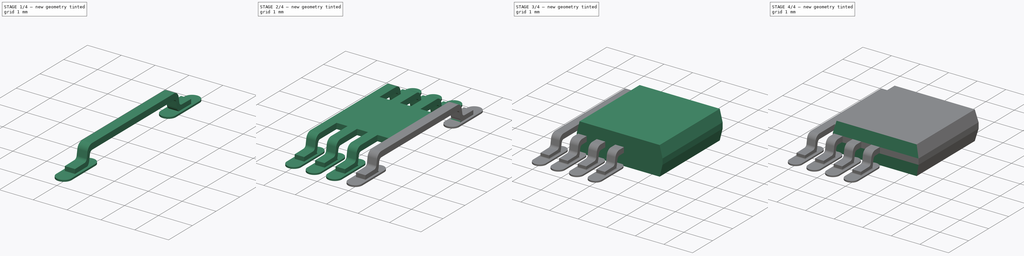
[diagram: build sequence overview — one tinted view per stage of 4, left to right]
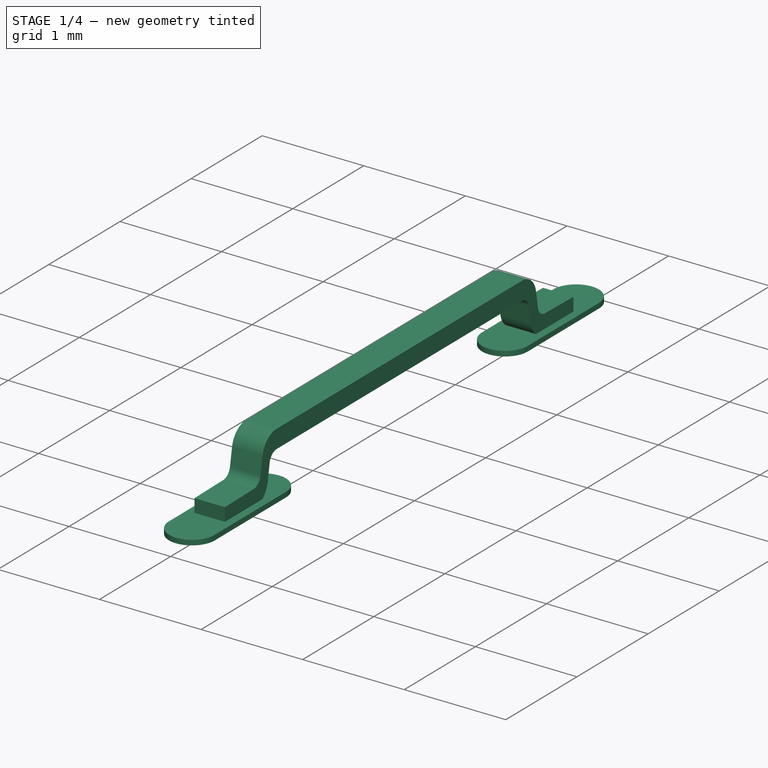
[diagram: stage 1 of 4 — iso view after this stage's code; geometry added in this stage tinted green]
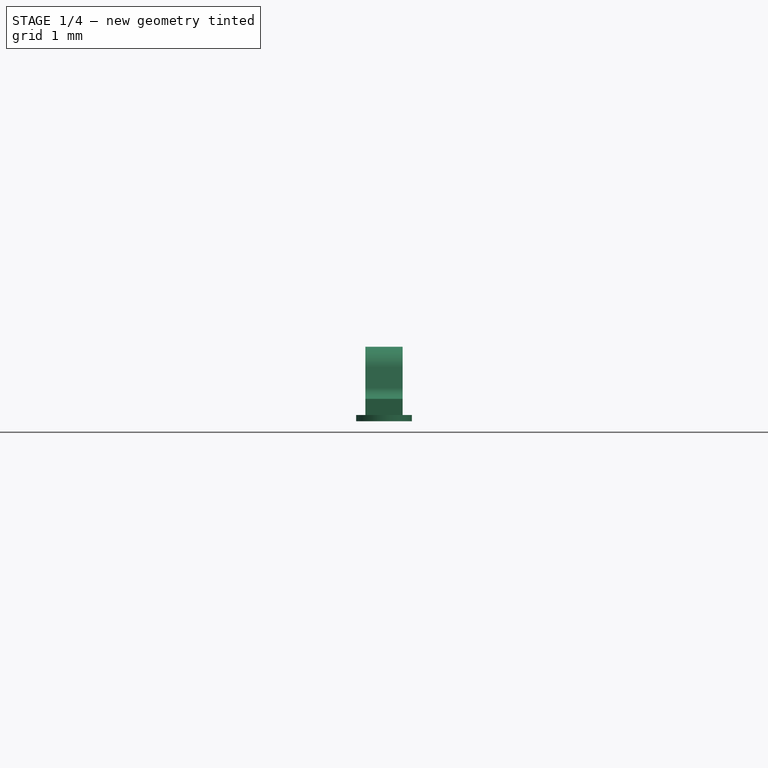
[diagram: stage 1 of 4 — front view after this stage's code; geometry added in this stage tinted green]
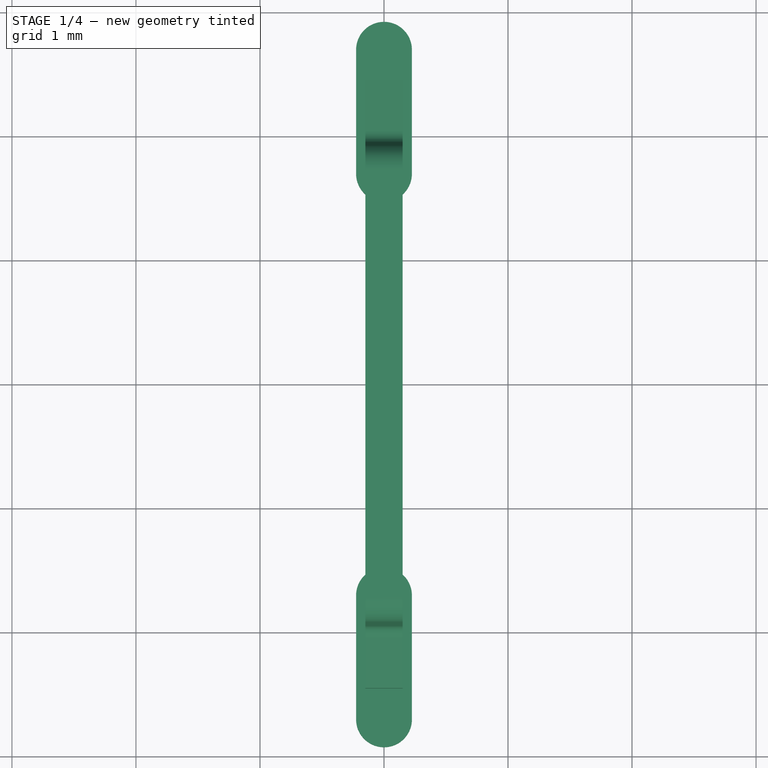
[diagram: stage 1 of 4 — top view after this stage's code; geometry added in this stage tinted green]
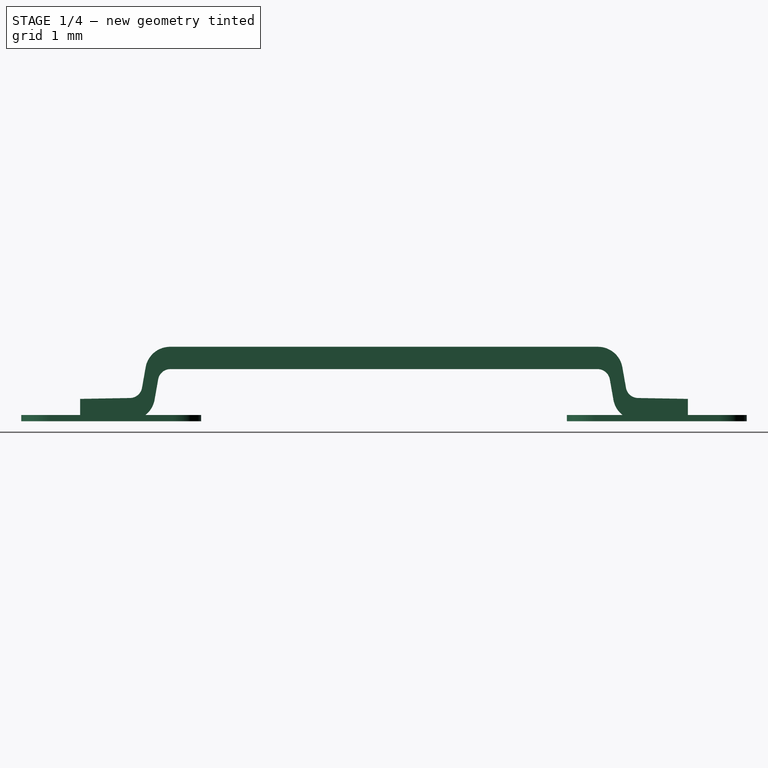
[diagram: stage 1 of 4 — right view after this stage's code; geometry added in this stage tinted green]
FCSTD DOCUMENT  (FreeCAD 0.18.4R)
Label: LMV358IDGKR
License: Other
LicenseURL: https://designlibre.org/license-en/
objects: Sketcher::SketchObject×5, PartDesign::Pad×4, PartDesign::Fillet×3, PartDesign::Body×2, PartDesign::Pocket×1, PartDesign::Mirrored×1, PartDesign::LinearPattern×1, App::Part×1
note: 22 computed .brp shape members not serialized (recipe doc carries the construction recipe); baked Part::Feature solids carry a one-line shape summary decoded from their .brp

FEATURE [PartDesign::Body] Body  label="chip"
  Group = -> [Sketch,Pad,Sketch001,Pocket,Mirrored]
  Origin = -> Origin001
  Tip = -> Mirrored
FEATURE [PartDesign::Pad] Pad001
  Length = 0.3
  Length2 = 100
  Midplane = true
  Placement = pos=(0,0,0) rot=(0.57735,0.57735,0.57735;2.0944rad)
  Profile = -> Sketch002
  Refine = true
  Type = 0
FEATURE [Sketcher::SketchObject] Sketch003
  MapMode = 5
  Support = -> [XY_Plane002]
  sketch-geometry (8):
    g0: ArcOfCircle CenterX=0 CenterY=2.7 CenterZ=0 NormalX=0 NormalY=0 NormalZ=1 AngleXU=0 Radius=0.225 StartAngle=9.8108e-12 EndAngle=3.14159
    g1: ArcOfCircle CenterX=1.5357e-12 CenterY=1.7 CenterZ=0 NormalX=0 NormalY=0 NormalZ=1 AngleXU=0 Radius=0.225 StartAngle=3.14159 EndAngle=6.28319
    g2: LineSegment StartX=-0.225 StartY=2.7 StartZ=0 EndX=-0.225 EndY=1.7 EndZ=0
    g3: LineSegment StartX=0.225 StartY=2.7 StartZ=0 EndX=0.225 EndY=1.7 EndZ=0
    g4: ArcOfCircle CenterX=8.418e-13 CenterY=-2.7 CenterZ=0 NormalX=0 NormalY=0 NormalZ=1 AngleXU=0 Radius=0.225 StartAngle=3.14159 EndAngle=6.28319
    g5: ArcOfCircle CenterX=-1.5357e-12 CenterY=-1.7 CenterZ=0 NormalX=0 NormalY=0 NormalZ=1 AngleXU=0 Radius=0.225 StartAngle=0 EndAngle=3.14159
    g6: LineSegment StartX=0.225 StartY=-2.7 StartZ=0 EndX=0.225 EndY=-1.7 EndZ=0
    g7: LineSegment StartX=-0.225 StartY=-2.7 StartZ=0 EndX=-0.225 EndY=-1.7 EndZ=0
  constraints (19):
    c: Tangent(g0,g3) = 1.5708
    c: Tangent(g0,g2) = -1.5708
    c: Tangent(g2,g1) = -1.5708
    c: Tangent(g3,g1) = 1.5708
    c: Vertical(g2)
    c: Equal(g0,g1)
    c: PointOnObject(g0,g-2)
    c: Tangent(g4,g7) = 1.5708
    c: Tangent(g4,g6) = -1.5708
    c: Tangent(g6,g5) = -1.5708
    c: Tangent(g7,g5) = 1.5708
    c: Vertical(g6)
    c: Equal(g4,g5)
    c: DistanceY(g1,g0) = 1
    c: Equal(g6,g3)
    c: Equal(g5,g0)
    c: Radius(g4) = 0.225
    c: DistanceY(g-1,g1) = 1.7
    c: Symmetric(g5,g1,g-1)
FEATURE [PartDesign::Pad] Pad002
  BaseFeature = -> Pad001
  Length = 0.05
  Length2 = 100
  Placement = pos=(0,0,0) rot=(0.57735,0.57735,0.57735;2.0944rad)
  Profile = -> Sketch003
  Refine = true
  Type = 0
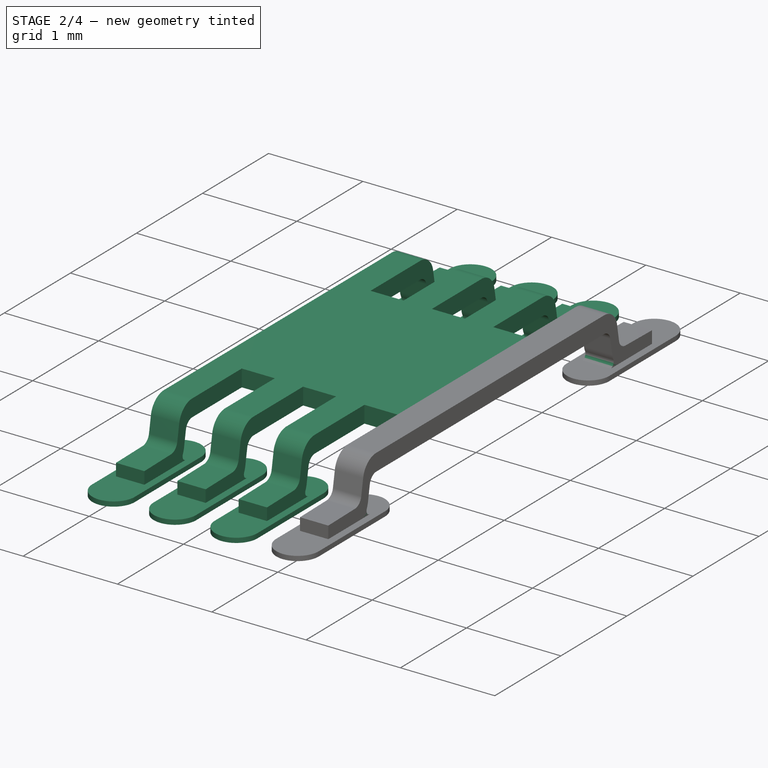
[diagram: stage 2 of 4 — iso view after this stage's code; geometry added in this stage tinted green]
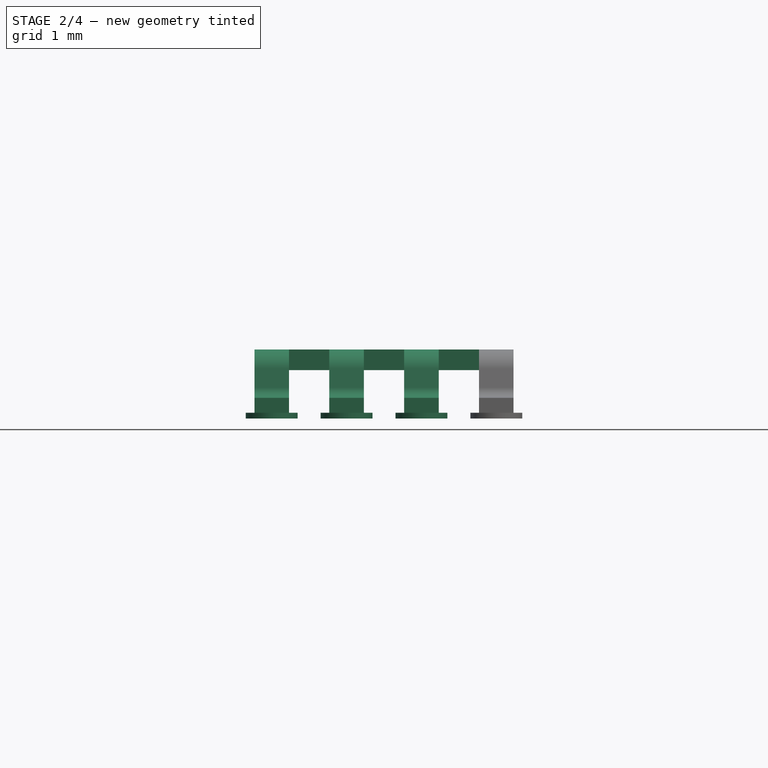
[diagram: stage 2 of 4 — front view after this stage's code; geometry added in this stage tinted green]
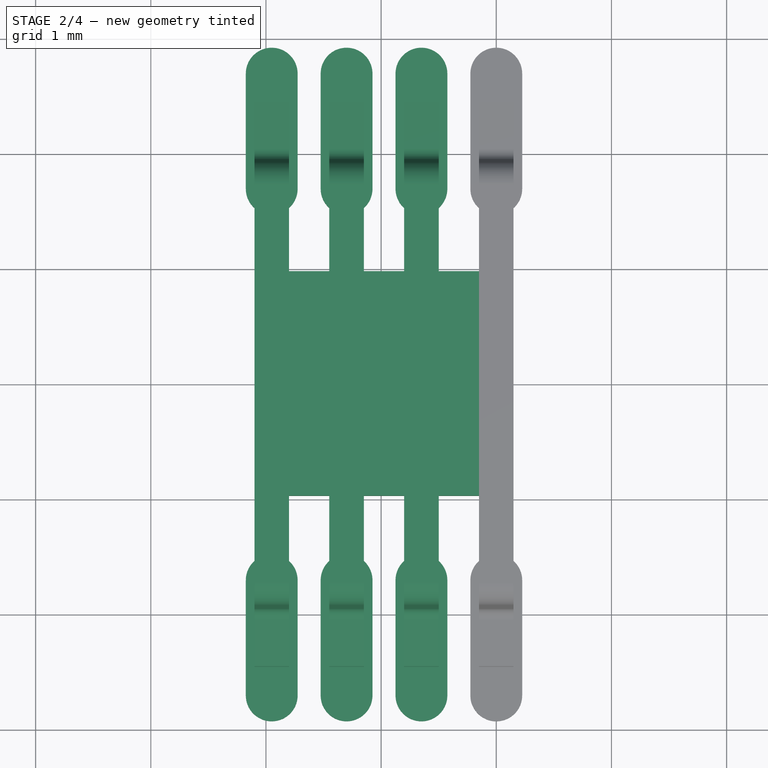
[diagram: stage 2 of 4 — top view after this stage's code; geometry added in this stage tinted green]
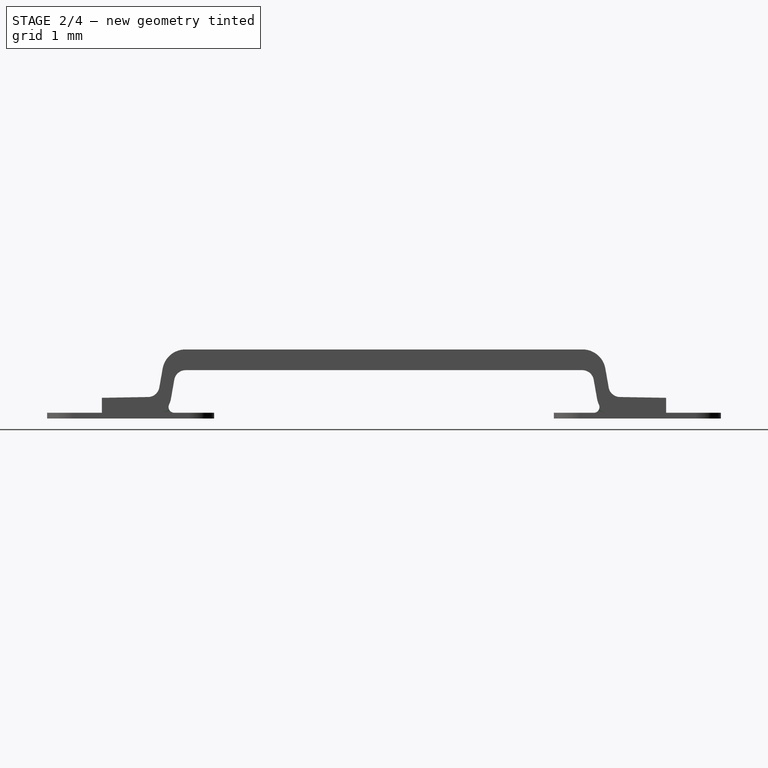
[diagram: stage 2 of 4 — right view after this stage's code; geometry added in this stage tinted green]
FEATURE [Sketcher::SketchObject] Sketch004
  ExternalGeometry = -> [Pad002]
  MapMode = 5
  Placement = pos=(-2e-16,2e-16,0.6) rot=(0,0,-1;1.5708rad)
  Support = -> [Pad002]
  sketch-geometry (4):
    g0: LineSegment StartX=-0.975 StartY=0.15 StartZ=0 EndX=0.975 EndY=0.15 EndZ=0
    g1: LineSegment StartX=0.975 StartY=0.15 StartZ=0 EndX=0.975 EndY=-1.8 EndZ=0
    g2: LineSegment StartX=0.975 StartY=-1.8 StartZ=0 EndX=-0.975 EndY=-1.8 EndZ=0
    g3: LineSegment StartX=-0.975 StartY=-1.8 StartZ=0 EndX=-0.975 EndY=0.15 EndZ=0
  constraints (11):
    c: Coincident(g0,g1)
    c: Coincident(g1,g2)
    c: Coincident(g2,g3)
    c: Coincident(g3,g0)
    c: Horizontal(g2)
    c: Vertical(g1)
    c: Vertical(g3)
    c: Symmetric(g0,g0,g-2)
    c: Equal(g1,g0)
    c: DistanceY(g1,g1) = 1.95
    c: PointOnObject(g0,g-3)
FEATURE [PartDesign::Pad] Pad003
  BaseFeature = -> Pad002
  Length = 0.18
  Length2 = 100
  Placement = pos=(0,0,0) rot=(0.57735,0.57735,0.57735;2.0944rad)
  Profile = -> Sketch004
  Refine = true
  Reversed = true
  Type = 0
FEATURE [PartDesign::LinearPattern] LinearPattern
  BaseFeature = -> Pad003
  Direction = -> X_Axis002
  Length = 1.95
  Occurrences = 4
  Originals = -> [Pad001,Pad002]
  Placement = pos=(0,0,0) rot=(0.57735,0.57735,0.57735;2.0944rad)
  Refine = true
  Reversed = true
FEATURE [PartDesign::Fillet] Fillet
  Base = -> LinearPattern [Edge346,Edge234,Edge125,Edge40,Edge359,Edge255,Edge168,Edge59]
  BaseFeature = -> LinearPattern
  Placement = pos=(0,0,0) rot=(0.57735,0.57735,0.57735;2.0944rad)
  Radius = 0.05
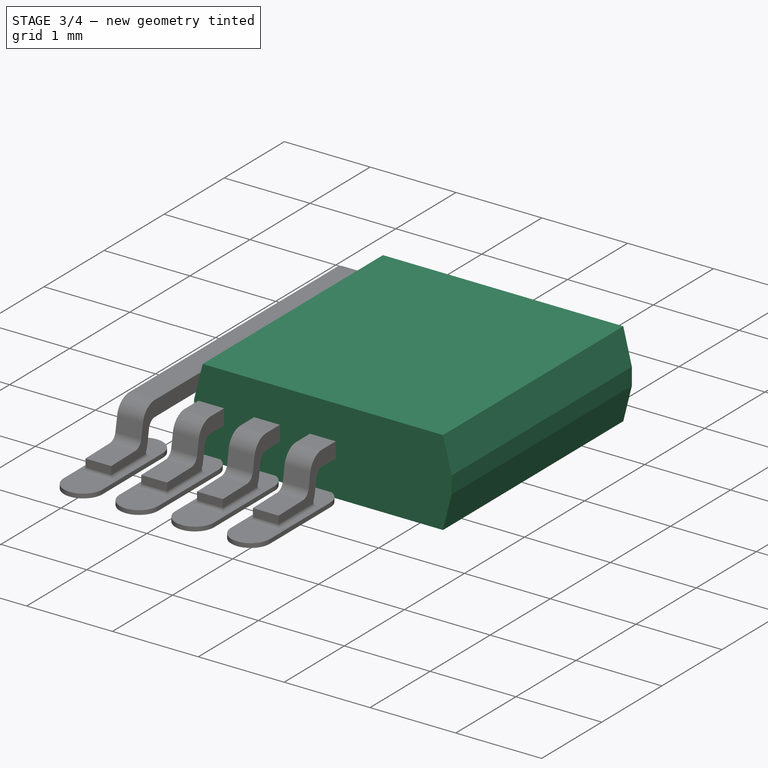
[diagram: stage 3 of 4 — iso view after this stage's code; geometry added in this stage tinted green]
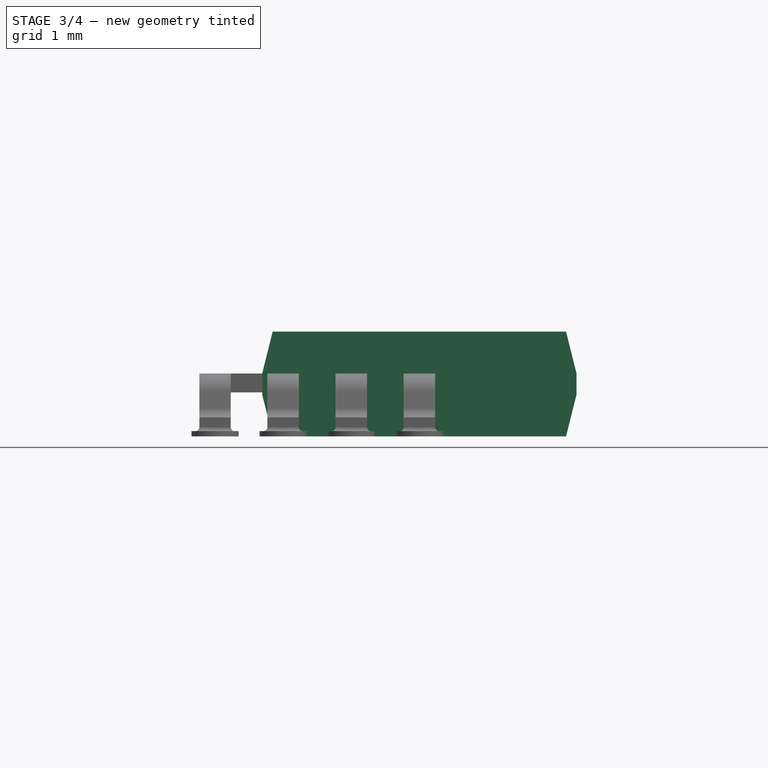
[diagram: stage 3 of 4 — front view after this stage's code; geometry added in this stage tinted green]
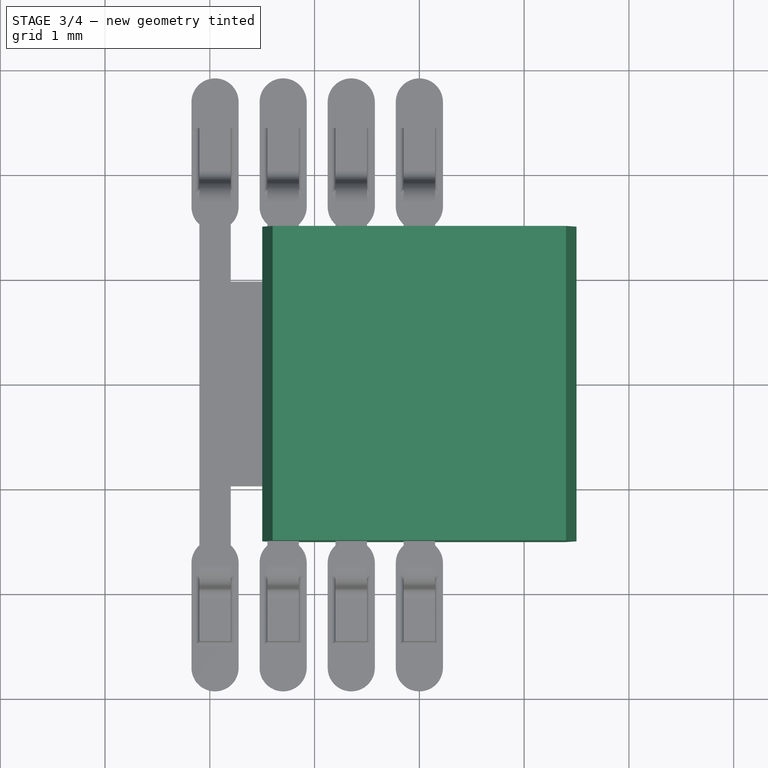
[diagram: stage 3 of 4 — top view after this stage's code; geometry added in this stage tinted green]
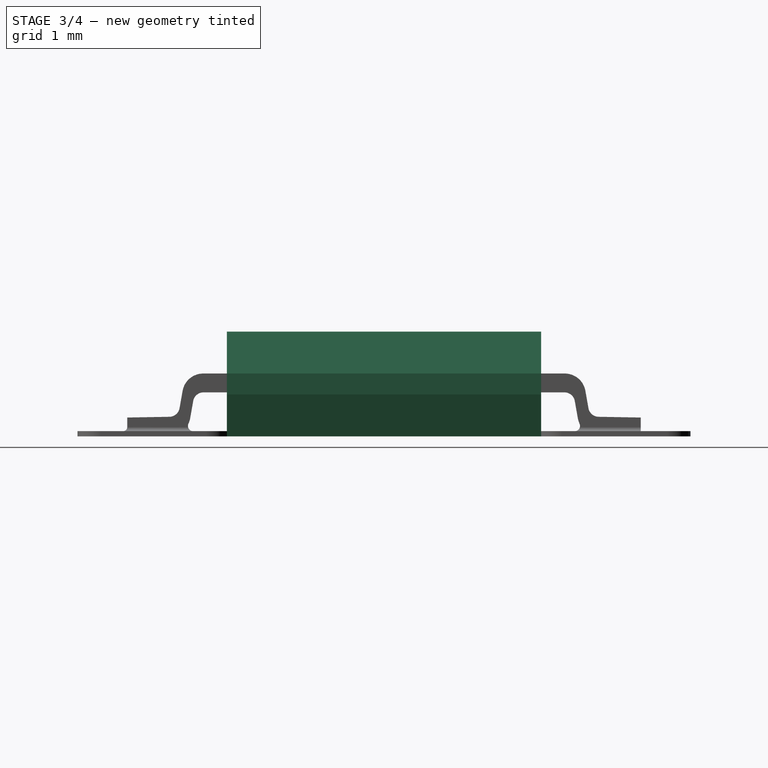
[diagram: stage 3 of 4 — right view after this stage's code; geometry added in this stage tinted green]
FEATURE [Sketcher::SketchObject] Sketch
  MapMode = 5
  Placement = pos=(0,0,0) rot=(1,0,0;1.5708rad)
  Support = -> [XZ_Plane001]
  sketch-geometry (9):
    g0: LineSegment StartX=-1.4 StartY=0 StartZ=0 EndX=1.4 EndY=0 EndZ=0
    g1: LineSegment StartX=1.4 StartY=0 StartZ=0 EndX=1.5 EndY=0.4 EndZ=0
    g2: LineSegment StartX=1.5 StartY=0.4 StartZ=0 EndX=1.5 EndY=0.6 EndZ=0
    g3: LineSegment StartX=1.5 StartY=0.6 StartZ=0 EndX=1.4 EndY=1 EndZ=0
    g4: LineSegment StartX=1.4 StartY=1 StartZ=0 EndX=-1.4 EndY=1 EndZ=0
    g5: LineSegment StartX=-1.4 StartY=1 StartZ=0 EndX=-1.5 EndY=0.6 EndZ=0
    g6: LineSegment StartX=-1.5 StartY=0.6 StartZ=0 EndX=-1.5 EndY=0.4 EndZ=0
    g7: LineSegment StartX=-1.5 StartY=0.4 StartZ=0 EndX=-1.4 EndY=0 EndZ=0
    g8: LineSegment [constr] StartX=-1.5 StartY=0.5 StartZ=0 EndX=1.5 EndY=0.5 EndZ=0
  constraints (23):
    c: PointOnObject(g0,g-1)
    c: Coincident(g0,g1)
    c: Coincident(g1,g2)
    c: Vertical(g2)
    c: Coincident(g2,g3)
    c: Coincident(g3,g4)
    c: Coincident(g4,g5)
    c: Coincident(g5,g6)
    c: Vertical(g6)
    c: Coincident(g6,g7)
    c: Coincident(g7,g0)
    c: DistanceX(g5,g2) = 3
    c: DistanceY(g2,g2) = 0.2
    c: Symmetric(g6,g5,g8)
    c: Symmetric(g2,g1,g8)
    c: Equal(g6,g2)
    c: Symmetric(g3,g4,g-2)
    c: Symmetric(g2,g5,g-2)
    c: Symmetric(g0,g0,g-2)
    c: Equal(g0,g4)
    c: Equal(g5,g7)
    c: DistanceX(g4,g3) = 2.8
    c: DistanceY(g0,g3) = 1
FEATURE [PartDesign::Pad] Pad
  Length = 3
  Length2 = 100
  Midplane = true
  Placement = pos=(0,0,0) rot=(1,0,0;1.5708rad)
  Profile = -> Sketch
  Refine = true
  Type = 0
FEATURE [PartDesign::Fillet] Fillet001
  Base = -> Fillet [Edge215,Edge179,Edge154,Edge33,Edge6,Edge142,Edge167,Edge192,Edge205,Edge240,Edge265,Edge86,Edge227,Edge252,Edge277,Edge19]
  BaseFeature = -> Fillet
  Placement = pos=(0,0,0) rot=(0.57735,0.57735,0.57735;2.0944rad)
  Radius = 0.04
FEATURE [PartDesign::Fillet] Fillet002
  Base = -> Fillet001 [Edge133,Edge438,Edge417,Edge393]
  BaseFeature = -> Fillet001
  Placement = pos=(0,0,0) rot=(0.57735,0.57735,0.57735;2.0944rad)
  Radius = 0.04
FEATURE [PartDesign::Body] Body001  label="pines"
  Group = -> [Sketch002,Pad001,Sketch003,Pad002,Sketch004,Pad003,LinearPattern,Fillet,Fillet001,Fillet002]
  Origin = -> Origin002
  Placement = pos=(0.975,0,0) rot=(0,0,1;0rad)
  Tip = -> Fillet002
FEATURE [App::Part] Part  label="LMV358"
  Group = -> [Body,Body001]
  Origin = -> Origin
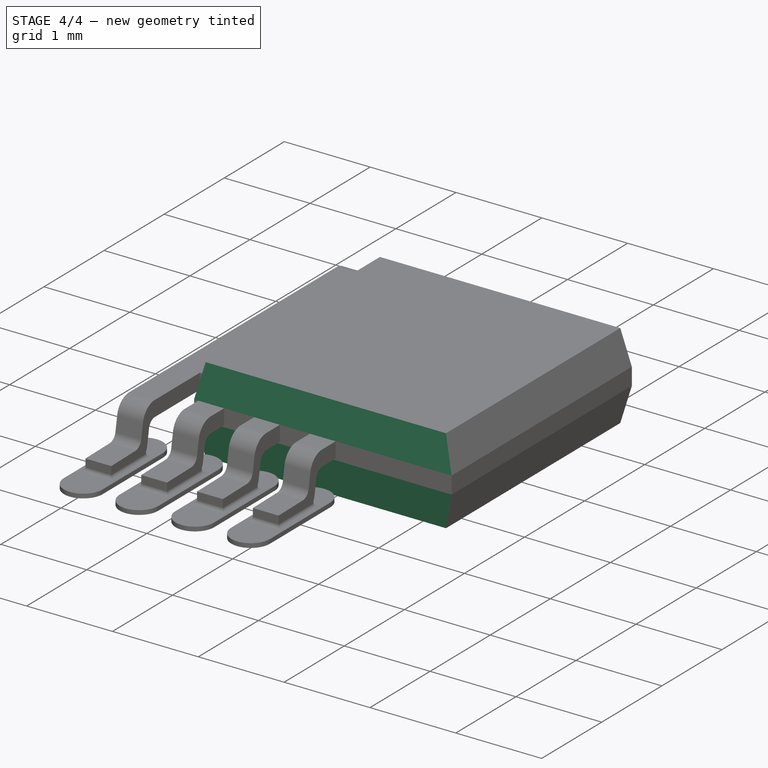
[diagram: stage 4 of 4 — iso view after this stage's code; geometry added in this stage tinted green]
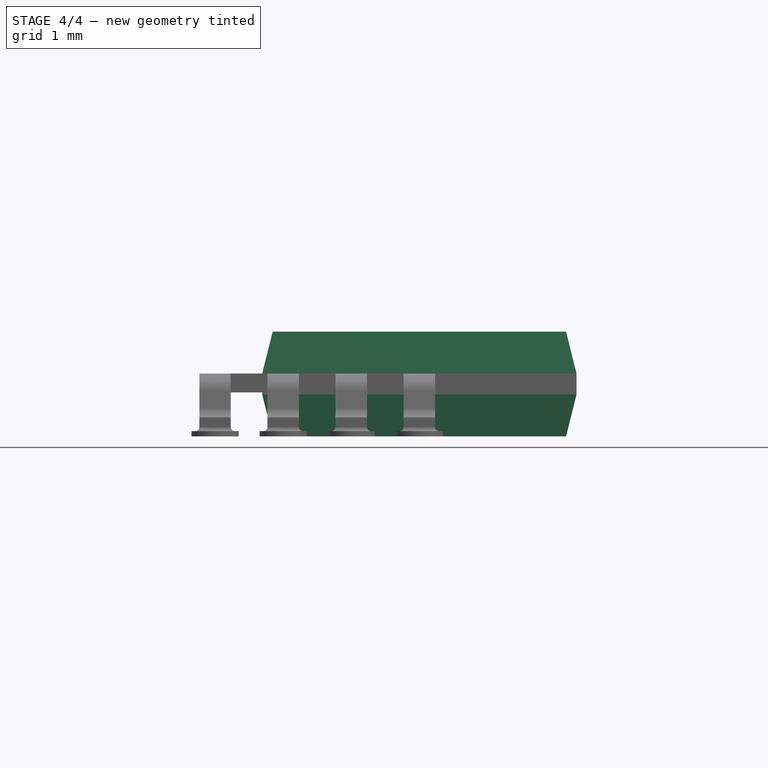
[diagram: stage 4 of 4 — front view after this stage's code; geometry added in this stage tinted green]
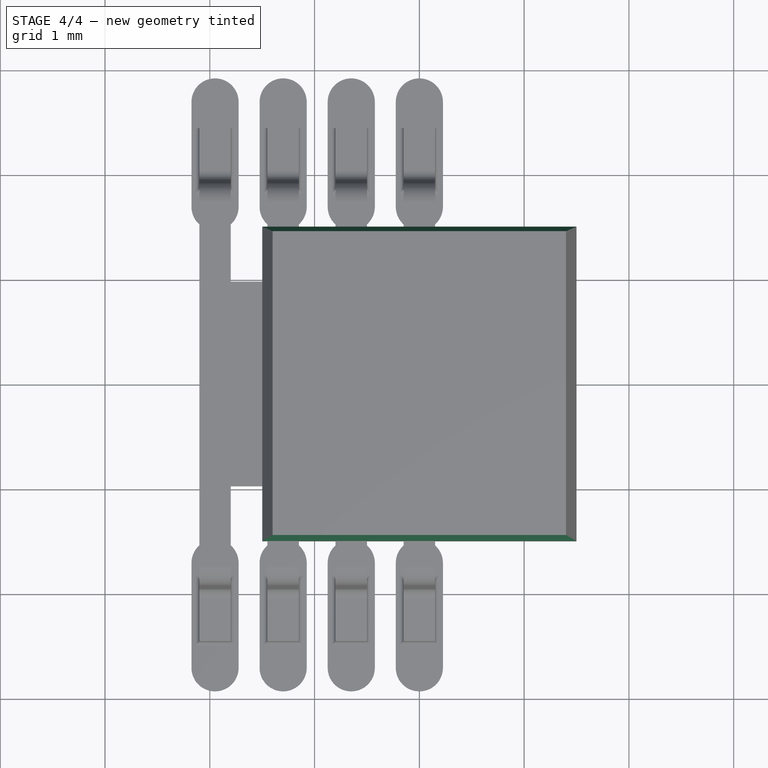
[diagram: stage 4 of 4 — top view after this stage's code; geometry added in this stage tinted green]
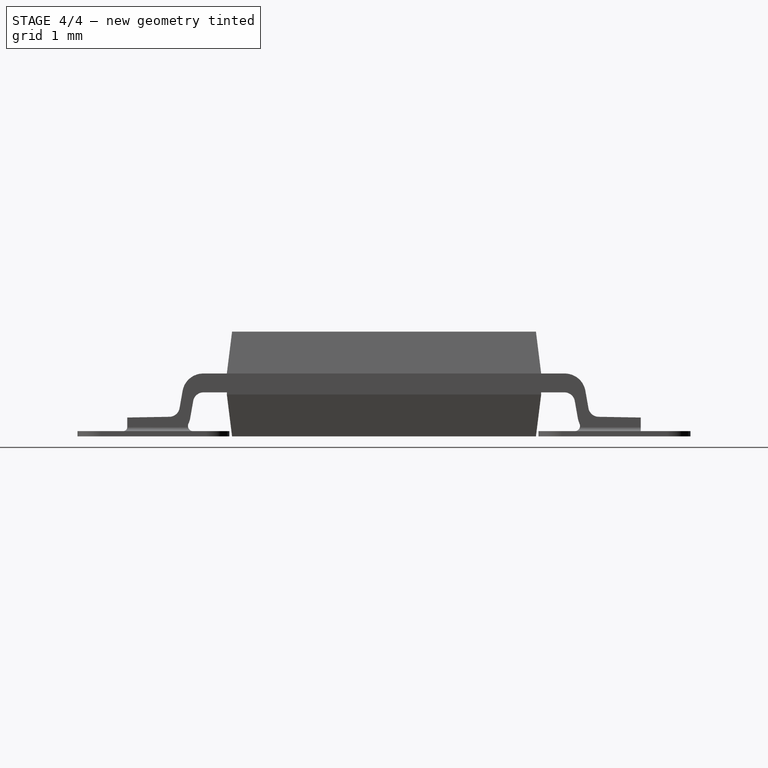
[diagram: stage 4 of 4 — right view after this stage's code; geometry added in this stage tinted green]
FEATURE [Sketcher::SketchObject] Sketch001
  ExternalGeometry = -> [Pad]
  MapMode = 5
  Placement = pos=(0,0,0) rot=(0.57735,0.57735,0.57735;2.0944rad)
  Support = -> [YZ_Plane001]
  sketch-geometry (6):
    g0: LineSegment StartX=-1.5 StartY=0.6 StartZ=0 EndX=-1.5 EndY=0.4 EndZ=0
    g1: LineSegment StartX=-1.5 StartY=0.4 StartZ=0 EndX=-1.45 EndY=2e-16 EndZ=0
    g2: LineSegment StartX=-1.45 StartY=2e-16 StartZ=0 EndX=-1.65 EndY=0 EndZ=0
    g3: LineSegment StartX=-1.65 StartY=0 StartZ=0 EndX=-1.65 EndY=1 EndZ=0
    g4: LineSegment StartX=-1.65 StartY=1 StartZ=0 EndX=-1.45 EndY=1 EndZ=0
    g5: LineSegment StartX=-1.45 StartY=1 StartZ=0 EndX=-1.5 EndY=0.6 EndZ=0
  constraints (16):
    c: Coincident(g-5,g0)
    c: Coincident(g0,g-6)
    c: Coincident(g0,g1)
    c: PointOnObject(g1,g-4)
    c: Coincident(g1,g2)
    c: PointOnObject(g2,g-1)
    c: Coincident(g2,g3)
    c: Vertical(g3)
    c: Coincident(g3,g4)
    c: PointOnObject(g4,g-3)
    c: Horizontal(g4)
    c: Coincident(g4,g5)
    c: Coincident(g5,g0)
    c: Equal(g4,g2)
    c: DistanceX(g-3,g4) = 0.05
    c: DistanceX(g2,g2) = 0.2
FEATURE [PartDesign::Pocket] Pocket
  BaseFeature = -> Pad
  Length = 3
  Length2 = 100
  Midplane = true
  Placement = pos=(0,0,0) rot=(1,0,0;1.5708rad)
  Profile = -> Sketch001
  Refine = true
  Type = 0
FEATURE [Sketcher::SketchObject] Sketch002
  MapMode = 5
  Placement = pos=(0,0,0) rot=(0.57735,0.57735,0.57735;2.0944rad)
  Support = -> [YZ_Plane002]
  sketch-geometry (21):
    g0: LineSegment StartX=-2.45 StartY=0 StartZ=0 EndX=-2.04347 EndY=0.00709599 EndZ=0
    g1: LineSegment StartX=-1.85 StartY=0.172336 StartZ=0 EndX=-1.8209 EndY=0.337365 EndZ=0
    g2: LineSegment StartX=-1.72242 StartY=0.42 StartZ=0 EndX=1.72242 EndY=0.42 EndZ=0
    g3: LineSegment StartX=1.8209 StartY=0.337365 StartZ=0 EndX=1.85 EndY=0.172336 EndZ=0
    g4: LineSegment StartX=2.04347 StartY=0.00709599 StartZ=0 EndX=2.45 EndY=0 EndZ=0
    g5: LineSegment StartX=-2.45 StartY=0 StartZ=0 EndX=-2.45 EndY=0.18 EndZ=0
    g6: LineSegment StartX=-2.45 StartY=0.18 StartZ=0 EndX=-2.04781 EndY=0.18702 EndZ=0
    g7: LineSegment StartX=-1.95107 StartY=0.26964 StartZ=0 EndX=-1.92196 EndY=0.43473 EndZ=0
    g8: LineSegment StartX=-1.725 StartY=0.6 StartZ=0 EndX=1.725 EndY=0.6 EndZ=0
    g9: LineSegment StartX=1.92196 StartY=0.43473 StartZ=0 EndX=1.95107 EndY=0.26964 EndZ=0
    g10: LineSegment StartX=2.04781 StartY=0.18702 StartZ=0 EndX=2.45 EndY=0.18 EndZ=0
    g11: LineSegment StartX=2.45 StartY=0.18 StartZ=0 EndX=2.45 EndY=0 EndZ=0
    g12: ArcOfCircle CenterX=-1.72242 CenterY=0.32 CenterZ=0 NormalX=0 NormalY=0 NormalZ=1 AngleXU=0 Radius=0.1 StartAngle=1.5708 EndAngle=2.96706
    g13: ArcOfCircle CenterX=-1.725 CenterY=0.4 CenterZ=0 NormalX=0 NormalY=0 NormalZ=1 AngleXU=0 Radius=0.2 StartAngle=1.5708 EndAngle=2.96706
    g14: ArcOfCircle CenterX=1.725 CenterY=0.4 CenterZ=0 NormalX=0 NormalY=0 NormalZ=1 AngleXU=0 Radius=0.2 StartAngle=0.174533 EndAngle=1.5708
    g15: ArcOfCircle CenterX=1.72242 CenterY=0.32 CenterZ=0 NormalX=0 NormalY=0 NormalZ=1 AngleXU=0 Radius=0.1 StartAngle=0.174533 EndAngle=1.5708
    g16: ArcOfCircle CenterX=2.04955 CenterY=0.287005 CenterZ=0 NormalX=0 NormalY=0 NormalZ=1 AngleXU=0 Radius=0.1 StartAngle=3.31613 EndAngle=4.69494
    g17: ArcOfCircle CenterX=2.04696 CenterY=0.207066 CenterZ=0 NormalX=0 NormalY=0 NormalZ=1 AngleXU=0 Radius=0.2 StartAngle=3.31613 EndAngle=4.69494
    g18: ArcOfCircle CenterX=-2.04696 CenterY=0.207066 CenterZ=0 NormalX=0 NormalY=0 NormalZ=1 AngleXU=0 Radius=0.2 StartAngle=4.72984 EndAngle=6.10865
    g19: ArcOfCircle CenterX=-2.04955 CenterY=0.287005 CenterZ=0 NormalX=0 NormalY=0 NormalZ=1 AngleXU=0 Radius=0.1 StartAngle=4.72984 EndAngle=6.10865
    g20: LineSegment [constr] StartX=0 StartY=0.6 StartZ=0 EndX=0 EndY=0.42 EndZ=0
  constraints (51):
    c: PointOnObject(g0,g-1)
    c: Coincident(g0,g5)
    c: Vertical(g5)
    c: Coincident(g5,g6)
    c: Coincident(g10,g11)
    c: Coincident(g11,g4)
    c: Angle(g1,g-2) = 0.174533
    c: Tangent(g2,g12) = 1.5708
    c: Tangent(g1,g12) = 1.5708
    c: Tangent(g8,g13) = 1.5708
    c: Tangent(g7,g13) = 1.5708
    c: Tangent(g8,g14) = 1.5708
    c: Tangent(g9,g14) = 1.5708
    c: Tangent(g2,g15) = 1.5708
    c: Tangent(g3,g15) = 1.5708
    c: Tangent(g9,g16) = -1.5708
    c: Tangent(g10,g16) = -1.5708
    c: Tangent(g4,g17) = -1.5708
    c: Tangent(g3,g17) = -1.5708
    c: Tangent(g1,g18) = -1.5708
    c: Tangent(g0,g18) = -1.5708
    c: Tangent(g6,g19) = -1.5708
    c: Tangent(g7,g19) = -1.5708
    c: Angle(g4,g-1) = 0.0174533
    c: Angle(g-1,g0) = 0.0174533
    c: Symmetric(g4,g0,g-1)
    c: DistanceX(g0,g-1) = 2.45
    c: Symmetric(g3,g1,g-2)
    c: Symmetric(g2,g2,g-2)
    c: Symmetric(g8,g8,g-2)
    c: Radius(g13) = 0.2
    c: Symmetric(g10,g5,g-2)
    c: DistanceY(g5,g5) = 0.18
    c: Parallel(g7,g1)
    c: DistanceY(g4,g8) = 0.6
    c: PointOnObject(g20,g8)
    c: PointOnObject(g20,g2)
    c: Vertical(g20)
    c: Equal(g20,g5)
    c: Parallel(g6,g0)
    c: Parallel(g10,g4)
    c: Parallel(g9,g3)
    c: DistanceX(g0,g1) = 0.6
    c: PointOnObject(g20,g-2)
    c: DistanceX(g8,g8) = 3.45
    c: Radius(g19) = 0.1
    c: Equal(g12,g19)
    c: Equal(g18,g13)
    c: Equal(g15,g16)
    c: Equal(g14,g17)
    c: Equal(g14,g13)
FEATURE [PartDesign::Mirrored] Mirrored
  BaseFeature = -> Pocket
  MirrorPlane = -> XZ_Plane001
  Originals = -> [Pocket]
  Placement = pos=(0,0,0) rot=(1,0,0;1.5708rad)
  Refine = true
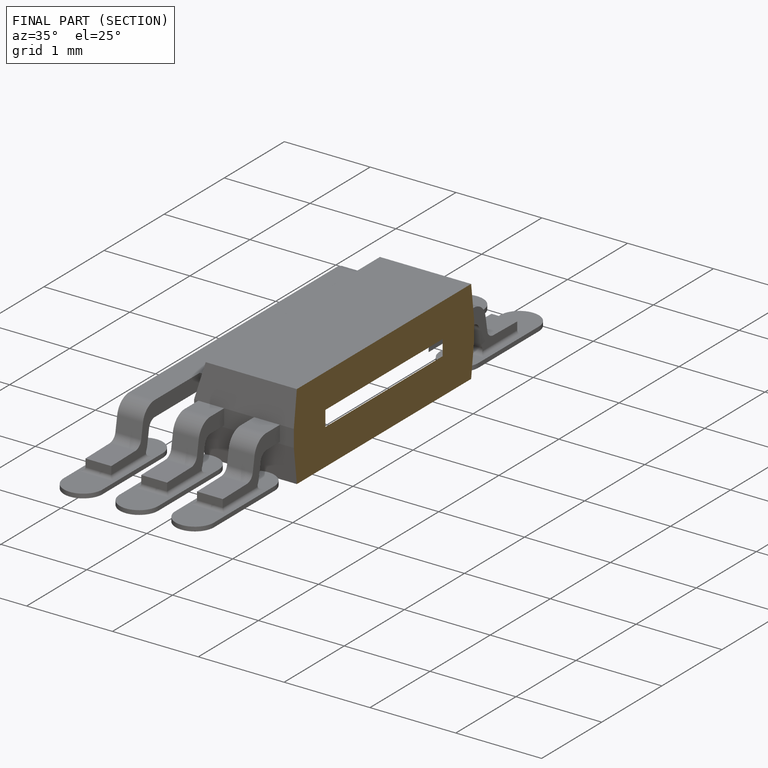
[diagram: finished part — half-section view (interior)]
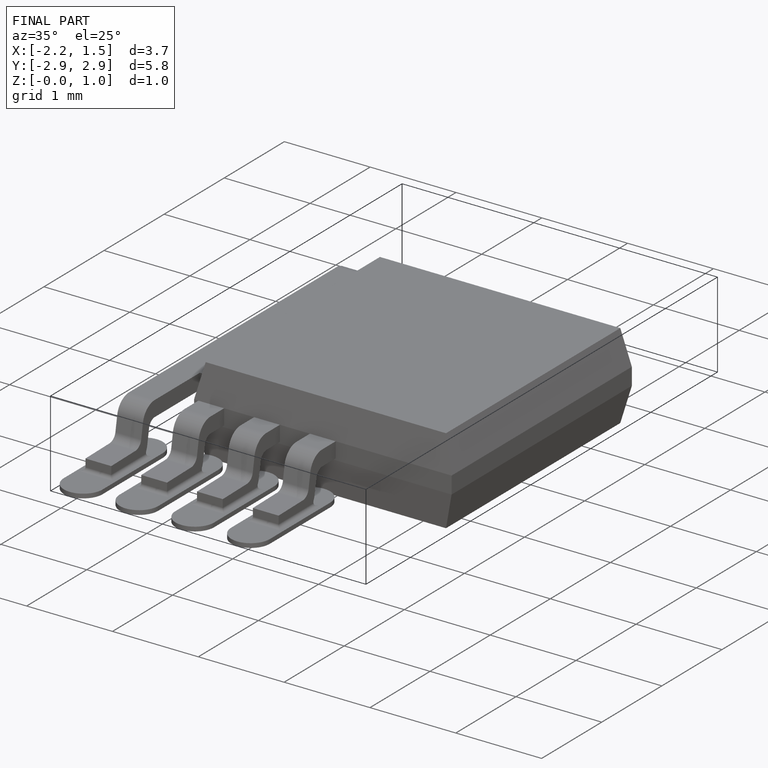
[diagram: finished part — iso view with bounding-box wireframe]
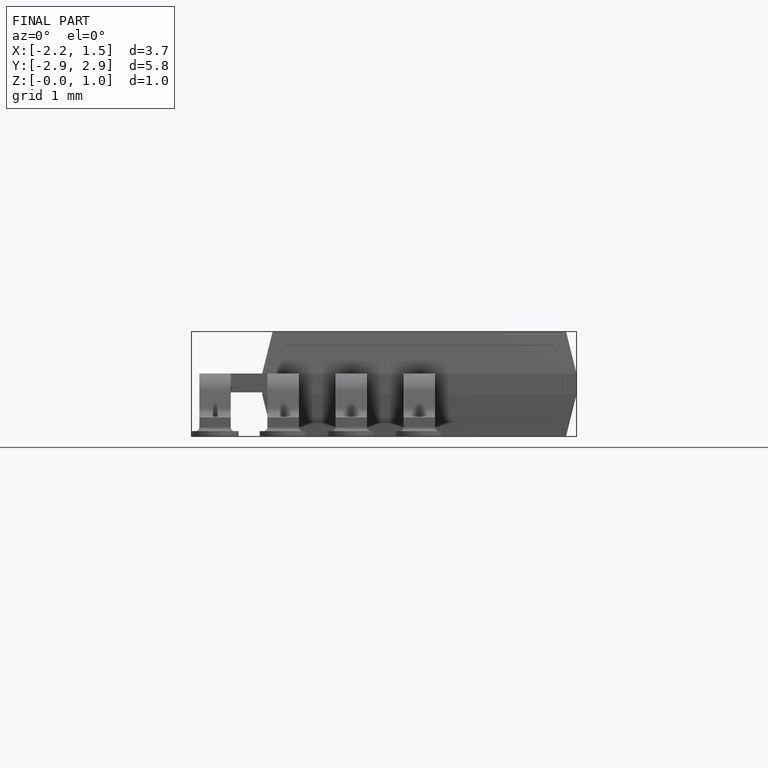
[diagram: finished part — front view with bounding-box wireframe]
